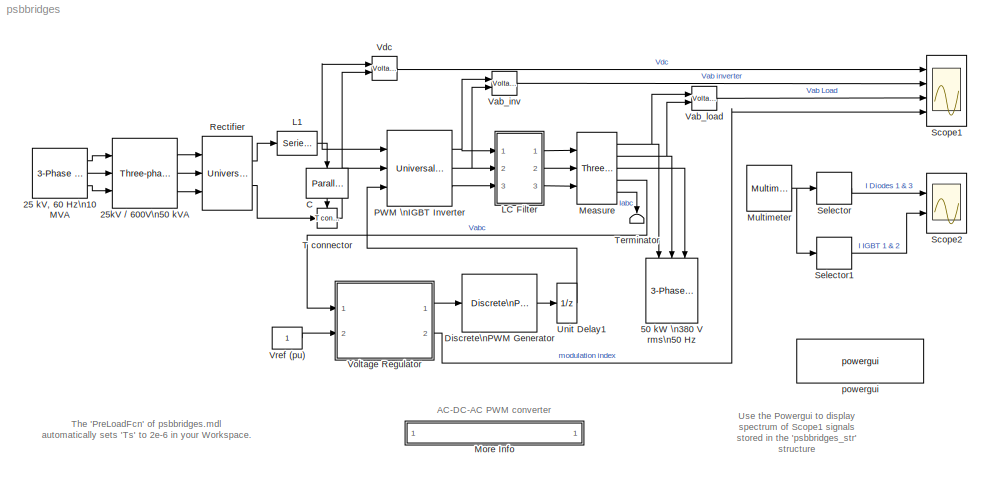
MODEL psbbridges
KIND model
CONFIG InitFcn = powericon('psbinitsys',bdroot);
CONFIG PreLoadFcn = assignin('base','Ts',[2e-6])
BLOCK [Reference] 25 kV, 60 Hz\n10 MVA  REF=powerlib2/Electrical\nSources/3-Phase Source
  F = 60
  InternalConnection = Yg
  L = 25e3^2/10e6/377
  PSBOutputType = 111
  Phi = 0
  Ports = [0, 3]
  Psc = 10e6
  R = 25e3^2/10e6/5
  RLoff = on
  SourceBlock = powerlib2/Electrical\nSources/3-Phase Source
  SourceType = 3-Phase Source
  Tag = PoWeRsYsTeMbLoCk
  V = 25e3
  Vbase = 25e3
  XRratio = 5
BLOCK [Reference] 25kV // 600V\n50 kVA  REF=powerlib2/Elements/Three-phase\nTransformer\n(Two Windings)
  PSBOutputType = 1111
  Ports = [3, 3]
  SourceBlock = powerlib2/Elements/Three-phase\nTransformer\n(Two Windings)
  SourceType = Three-Phase Transformer (Two Windings)
  Tag = PoWeRsYsTeMbLoCk
  hyst = off
  initialslopes = [+1 +1 +1]
  lm = 200
  matfile = 'hysteresis'
  mesure = None
  nominal = [ 50e3 , 60 ]
  params1 = [ 25e3 , 0.004 , 0.02 ]
  params2 = [ 600 , 0.004 , 0.02 ]
  phi0 = [ 0.8 , -0.8 , 0.7 ]
  rmag = 200
  sat = [ 0,0  ;  0.005,1.2  ;  1.0,1.4 ]
  sif = off
  type1 = Yg
  type2 = Delta (D1)
  ynsat = off
BLOCK [Reference] 50 kW \n380 V rms\n50 Hz  REF=powerlib2/Elements/3-Phase\nParallel RLC Load
  P3 = 50e3
  Ports = [3]
  QC3 = 0
  QL3 = 0
  SourceBlock = powerlib2/Elements/3-Phase\nParallel RLC Load
  SourceType = 3-phase parallel RLC load
  Vpp = 380
  fn = 50
BLOCK [Reference] C  REF=powerlib2/Elements/Parallel RLC Branch
  PSBOutputType = 1
  Ports = [1, 1]
  SourceBlock = powerlib2/Elements/Parallel RLC Branch
  SourceType = Parallel RLC Branch
  Tag = PoWeRsYsTeMbLoCk
  a = inf
  b = inf
  c = 5000e-06
  mesure = None
BLOCK [Reference] Discrete\nPWM Generator  REF=powerlib_extras/Discrete \nControl Blocks/Discrete\nPWM Generator
  Fc = 2000
  Freq = 60
  GeneratorMode = 3-arm  bridge (6 pulses)
  Internal = off
  Phase = 0
  Ports = [1, 1]
  SourceBlock = powerlib_extras/Discrete \nControl Blocks/Discrete\nPWM Generator
  SourceType = Discrete PWM Generator
  Ts = Ts
  mIndex = 0.4
BLOCK [Reference] L1  REF=powerlib2/Elements/Series RLC Branch
  PSBOutputType = 1
  Ports = [1, 1]
  SourceBlock = powerlib2/Elements/Series RLC Branch
  SourceType = Series RLC Branch
  Tag = PoWeRsYsTeMbLoCk
  a = 0
  b = 200e-6
  c = inf
  mesure = None
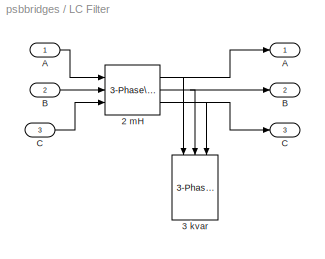
BLOCK [SubSystem] LC Filter
  MinAlgLoopOccurrences = off
  Ports = [3, 3]
  RTWSystemCode = Auto
  TreatAsAtomicUnit = off
BLOCK [Reference] LC Filter/2 mH   REF=powerlib2/Elements/3-Phase\nSeries RLC Branch 
  C = inf
  L = 2e-3
  Ports = [3, 3]
  R = 0
  SourceBlock = powerlib2/Elements/3-Phase\nSeries RLC Branch
  SourceType = 3-phase RLC series element
BLOCK [Reference] LC Filter/3 kvar  REF=powerlib2/Elements/3-Phase\nSeries RLC Load
  P3 = 0
  Ports = [3]
  QC3 = 3e3
  QL3 = 0
  SourceBlock = powerlib2/Elements/3-Phase\nSeries RLC Load
  SourceType = 3-phase series RLC load
  Vpp = 380
  fn = 50
BLOCK [Inport] LC Filter/A
  IconDisplay = Port number
  LatchInput = off
  Port = 1
BLOCK [Outport] LC Filter/A 
  BusOutputAsStruct = off
  IconDisplay = Port number
BLOCK [Inport] LC Filter/B
  IconDisplay = Port number
  LatchInput = off
  Port = 2
BLOCK [Outport] LC Filter/B 
  BusOutputAsStruct = off
  IconDisplay = Port number
  Port = 2
BLOCK [Inport] LC Filter/C
  IconDisplay = Port number
  LatchInput = off
  Port = 3
BLOCK [Outport] LC Filter/C 
  BusOutputAsStruct = off
  IconDisplay = Port number
  Port = 3
BLOCK [Reference] Measure  REF=powerlib2/Measurements/Three-Phase\nV-I Measurement
  IChoice = yes
  OutputType = Magnitude
  PSBOutputType = 11100
  PSBequivalent = 0
  Pbase = 1e3
  PhasorSimulation = off
  Ports = [3, 5]
  Ppu = off
  SourceBlock = powerlib2/Measurements/Three-Phase\nV-I Measurement
  SourceType = 3-Phase VI Measurement
  Tag = PoWeRsYsTeMmEaSuReMeNt
  VChoice = phase-to-ground
  Vbase = 380
  Vpu = on
  labelC = I1
  labelV = V1
  ualc = off
  ualv = off
BLOCK [SubSystem] More Info
  MaskDisplay = disp('? : Double click here for more info')
  MaskIconFrame = off
  MaskIconOpaque = on
  MaskIconRotate = none
  MaskIconUnits = autoscale
  MinAlgLoopOccurrences = off
  Ports = []
  RTWSystemCode = Auto
  TreatAsAtomicUnit = off
BLOCK [Reference] Multimeter  REF=powerlib2/Measurements/Multimeter
  AxesSetting = [0,0.1,-100,100]
  Display = 0
  Gain = [1 1 1 1]
  L = 12
  OutputType = Magnitude
  PSBOutputType = 1
  PSBequivalent = 0
  PhasorSimulation = off
  Ports = [0, 1]
  SavedBlockNames = -11
  SourceBlock = powerlib2/Measurements/Multimeter
  SourceType = MultimeterPSB
  Tag = PoWeRsYsTeMmEaSuReMeNt
  sel = [1 3 7 8]
  yselected = {'Isw1: Rectifier','Isw3: Rectifier','Isw1: PWM  IGBT Inverter','Isw2: PWM  IGBT Inverter'};
BLOCK [Reference] PWM \nIGBT Inverter  REF=powerlib2/Power\nElectronics/Universal Bridge
  Lon = 0
  PSBOutputType = 111
  Ports = [3, 3]
  Ron = 1e-3
  SourceBlock = powerlib2/Power\nElectronics/Universal Bridge
  SourceType = Universal Bridge
  Tag = PoWeRsYsTeMbLoCk
  VFs = [  0.0  0.0  ]
  Vf = .8
  arms = 3
  cf = inf
  confi = ABC as output terminals
  device = IGBT / Diodes
  gtoparameters = [ 1e-6 ,1e-6 ]
  igbtparameters = [ 1e-6 , 2e-6 ]
  injcc = 5000
  mesure = Device currents
BLOCK [Reference] Rectifier  REF=powerlib2/Power\nElectronics/Universal Bridge
  Lon = 0
  PSBOutputType = 111
  Ports = [3, 2]
  Ron = 1e-3
  SourceBlock = powerlib2/Power\nElectronics/Universal Bridge
  SourceType = Universal Bridge
  Tag = PoWeRsYsTeMbLoCk
  VFs = [  0.8  0.8  ]
  Vf = .8
  arms = 3
  cf = 0.1e-6
  confi = ABC as input terminals
  device = Diodes
  gtoparameters = [ 10e-6 , 20e-6 ]
  igbtparameters = [ 1e-6 , 2e-6 ]
  injcc = 100
  mesure = Device currents
BLOCK [Scope] Scope1
  DataFormat = StructureWithTime
  LimitDataPoints = off
  NumInputPorts = 4
  Ports = [4]
  SaveName = psbbridges_str
  SaveToWorkspace = on
  TimeRange = 0.1
  YMax = 1100~1500~750~1.1
  YMin = 0~-1500~-750~0.4
  ZoomMode = yonly
BLOCK [Scope] Scope2
  DataFormat = StructureWithTime
  LimitDataPoints = off
  NumInputPorts = 2
  Ports = [2]
  TimeRange = 0.09999999999999999
  YMax = 100~125
  YMin = -10~-125
BLOCK [Selector] Selector
  Elements = [1 2]
  InputPortWidth = 4
  Ports = [1, 1]
BLOCK [Selector] Selector1
  Elements = [3 4]
  InputPortWidth = 4
  Ports = [1, 1]
BLOCK [Reference] T connector  REF=powerlib2/Connectors/T connector
  PSBOutputType = 1
  Ports = [1, 1, 1]
  SourceBlock = powerlib2/Connectors/T connector
  SourceType = Bus Bar
  Tag = PoWeRsYsTeMbLoCk
BLOCK [Terminator] Terminator
BLOCK [UnitDelay] Unit Delay1
  SampleTime = Ts
BLOCK [Reference] Vab_inv  REF=powerlib2/Measurements/Voltage Measurement
  OutputType = Magnitude
  PSBOutputType = 0
  PSBequivalent = 0
  PhasorSimulation = off
  Ports = [2, 1]
  SourceBlock = powerlib2/Measurements/Voltage Measurement
  SourceType = Voltage Measurement
  Tag = PoWeRsYsTeMmEaSuReMeNt
BLOCK [Reference] Vab_load  REF=powerlib2/Measurements/Voltage Measurement
  OutputType = Magnitude
  PSBOutputType = 0
  PSBequivalent = 0
  PhasorSimulation = off
  Ports = [2, 1]
  SourceBlock = powerlib2/Measurements/Voltage Measurement
  SourceType = Voltage Measurement
  Tag = PoWeRsYsTeMmEaSuReMeNt
BLOCK [Reference] Vdc  REF=powerlib2/Measurements/Voltage Measurement
  OutputType = Magnitude
  PSBOutputType = 0
  PSBequivalent = 0
  PhasorSimulation = off
  Ports = [2, 1]
  SourceBlock = powerlib2/Measurements/Voltage Measurement
  SourceType = Voltage Measurement
  Tag = PoWeRsYsTeMmEaSuReMeNt
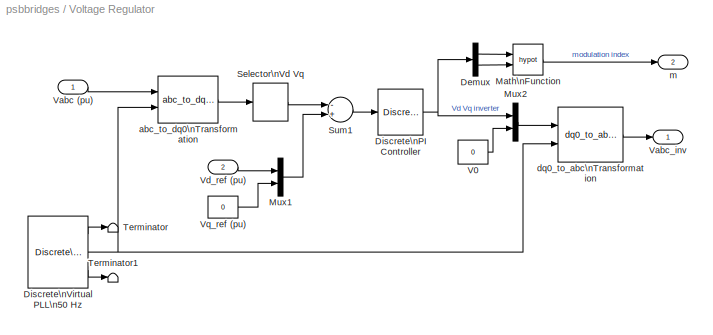
BLOCK [SubSystem] Voltage Regulator
  MaskCallbackString = ||
  MaskEnableString = on,on,on
  MaskIconFrame = on
  MaskIconOpaque = on
  MaskIconRotate = none
  MaskIconUnits = autoscale
  MaskPromptString = Proportional gain  Kp:|Integral gain Ki:|Sample time (s) :
  MaskStyleString = edit,edit,edit
  MaskTabNameString = ,,
  MaskToolTipString = on,on,on
  MaskTunableValueString = on,on,on
  MaskType = Voltage Regulator
  MaskValueString = 0.4|500|Ts
  MaskVarAliasString = ,,
  MaskVariables = Kp=@1;Ki=@2;Ts=@3;
  MaskVisibilityString = on,on,on
  MinAlgLoopOccurrences = off
  Ports = [2, 2]
  RTWSystemCode = Auto
  TreatAsAtomicUnit = off
BLOCK [Demux] Voltage Regulator/Demux
  Outputs = 2
  Ports = [1, 2]
BLOCK [Reference] Voltage Regulator/Discrete\nPI Controller  REF=powerlib_extras/Discrete \nControl Blocks/Discrete\nPI Controller
  Init = 0
  Ki = Ki
  Kp = Kp
  Par_Limits = [1 -1]
  Ports = [1, 1]
  SourceBlock = powerlib_extras/Discrete \nControl Blocks/Discrete\nPI Controller
  SourceType = Discrete PI Controller
  Ts = Ts
BLOCK [Reference] Voltage Regulator/Discrete\nVirtual PLL\n50 Hz  REF=powerlib_extras/Discrete \nControl Blocks/Discrete\nVirtual PLL
  Freq = 50
  Phase = 0
  Ports = [0, 3]
  SourceBlock = powerlib_extras/Discrete \nControl Blocks/Discrete\nVirtual PLL
  SourceType = Discrete Virtual PLL
  Ts = Ts
BLOCK [Math] Voltage Regulator/Math\nFunction
  Operator = hypot
  Ports = [2, 1]
BLOCK [Mux] Voltage Regulator/Mux1
  DisplayOption = bar
  Inputs = 2
  Ports = [2, 1]
BLOCK [Mux] Voltage Regulator/Mux2
  DisplayOption = bar
  Inputs = 2
  Ports = [2, 1]
BLOCK [Selector] Voltage Regulator/Selector\nVd Vq
  Elements = [1 2]
  InputPortWidth = 3
  Ports = [1, 1]
BLOCK [Sum] Voltage Regulator/Sum1
  Inputs = -+
  Ports = [2, 1]
BLOCK [Terminator] Voltage Regulator/Terminator
BLOCK [Terminator] Voltage Regulator/Terminator1
BLOCK [Constant] Voltage Regulator/V0
  Value = 0
BLOCK [Inport] Voltage Regulator/Vabc (pu)
  IconDisplay = Port number
  LatchInput = off
  Port = 1
BLOCK [Outport] Voltage Regulator/Vabc_inv
  BusOutputAsStruct = off
  IconDisplay = Port number
BLOCK [Inport] Voltage Regulator/Vd_ref (pu)
  IconDisplay = Port number
  LatchInput = off
  Port = 2
BLOCK [Constant] Voltage Regulator/Vq_ref (pu)
  Value = 0
BLOCK [Reference] Voltage Regulator/abc_to_dq0\nTransformation  REF=powerlib_extras/Measurements/abc_to_dq0\nTransformation
  Ports = [2, 1]
  SourceBlock = powerlib_extras/Measurements/abc_to_dq0\nTransformation
  SourceType = abc to dq0 Transformation
BLOCK [Reference] Voltage Regulator/dq0_to_abc\nTransformation  REF=powerlib_extras/Measurements/dq0_to_abc\nTransformation
  Ports = [2, 1]
  SourceBlock = powerlib_extras/Measurements/dq0_to_abc\nTransformation
  SourceType = dq0 to abc Transformation
BLOCK [Outport] Voltage Regulator/m
  BusOutputAsStruct = off
  IconDisplay = Port number
  Port = 2
BLOCK [Constant] Vref (pu) 
BLOCK [Reference] powergui  REF=powerlib2/powergui
  DisplayStyle = off
  Frange = [0:2:500]
  FreqAxis = off
  MaxFrequency = 7000
  Ports = []
  RmsSteady = 1
  SourceBlock = powerlib2/powergui
  SourceType = PSB option menu block
  StartTime = 0.1-2/50
  Ts = Ts
  Xlog = on
  Ylog = off
  ZoomFFT = on
  cycles = 2
  display = off
  echomessages = off
  frequency = 60
  frequencyindice = 1
  frequencyindicesteady = 1
  fundamental = 50
  methode = off
  save = off
  structure = psbbridges_str
  variable = ZData
ANNOTATION (root): AC-DC-AC PWM converter
ANNOTATION (root): The 'PreLoadFcn' of psbbridges.mdl\nautomatically sets 'Ts' to 2e-6 in your Workspace.
ANNOTATION (root): Use the Powergui to display \nspectrum of Scope1 signals \nstored in the 'psbbridges_str' \nstructure
ANNOTATION More Info: A 60 Hz, voltage source feeds a 50 Hz, 50 kW load through an AC-DC-AC converter. \n\nThe 600V, 60 Hz voltage obtained at secondary of the Wye/Delta transformer is first rectified by a six pulse diode bridge.\nThe filtered DC voltage is applied to an IGBT two-level inverter generating 50 Hz.\nThe IGBT inverter uses Pulse Width Modulation (PWM) at a 2 kHz carrier frequency.\nThe circuit is discretiz...<+845ch>
ANNOTATION More Info: Circuit Description
ANNOTATION More Info: Demonstration
ANNOTATION More Info: G. Sybille (Hydro-Quebec)
ANNOTATION More Info: Start the simulation. After a transient period of approximately 50 ms, the system reaches a steady state.\nObserve voltage waveforms at DC bus, inverter output and load on Scope1.\nThe harmonics generated by the inverter around around multiples of 2 kHz are filtered by the LC filter.\n\nAs expected the peak value of the load voltage is 537 V (380 Vrms). \nIn steady state the mean value of the modu...<+1118ch>
ANNOTATION More Info: This example of AC-DC-AC converter illustrates use of Universal Bridge, \n Multimeter and Powergui blocks as well as discrete control blocks of the Extras library
LINE 25 kV, 60 Hz\n10 MVA:1 -> 25kV // 600V\n50 kVA:1
LINE 25 kV, 60 Hz\n10 MVA:2 -> 25kV // 600V\n50 kVA:2
LINE 25 kV, 60 Hz\n10 MVA:3 -> 25kV // 600V\n50 kVA:3
LINE 25kV // 600V\n50 kVA:1 -> Rectifier:1
LINE 25kV // 600V\n50 kVA:2 -> Rectifier:2
LINE 25kV // 600V\n50 kVA:3 -> Rectifier:3
LINE C:1 -> T connector:enable
LINE Discrete\nPWM Generator:1 -> Unit Delay1:1
NET L1:1 -> C:1, PWM \nIGBT Inverter:1, Vdc:1
NET LC Filter/2 mH :1 -> LC Filter/3 kvar:1, LC Filter/A :1
NET LC Filter/2 mH :2 -> LC Filter/3 kvar:2, LC Filter/B :1
NET LC Filter/2 mH :3 -> LC Filter/3 kvar:3, LC Filter/C :1
LINE LC Filter/A:1 -> LC Filter/2 mH :1
LINE LC Filter/B:1 -> LC Filter/2 mH :2
LINE LC Filter/C:1 -> LC Filter/2 mH :3
LINE LC Filter:1 -> Measure:1
LINE LC Filter:2 -> Measure:2
LINE LC Filter:3 -> Measure:3
NET Measure:1 -> 50 kW \n380 V rms\n50 Hz:1, Vab_load:1
NET Measure:2 -> 50 kW \n380 V rms\n50 Hz:2, Vab_load:2
LINE Measure:3 -> 50 kW \n380 V rms\n50 Hz:3
LINE Measure:4 -> Voltage Regulator:1
LINE Measure:5 -> Terminator:1
NET Multimeter:1 -> Selector1:1, Selector:1
NET PWM \nIGBT Inverter:1 -> LC Filter:1, Vab_inv:1
NET PWM \nIGBT Inverter:2 -> LC Filter:2, Vab_inv:2
LINE PWM \nIGBT Inverter:3 -> LC Filter:3
LINE Rectifier:1 -> L1:1
LINE Rectifier:2 -> T connector:1
LINE Selector1:1 -> Scope2:2
LINE Selector:1 -> Scope2:1
NET T connector:1 -> PWM \nIGBT Inverter:2, Vdc:2
LINE Unit Delay1:1 -> PWM \nIGBT Inverter:3
LINE Vab_inv:1 -> Scope1:2
LINE Vab_load:1 -> Scope1:3
LINE Vdc:1 -> Scope1:1
LINE Voltage Regulator/Demux:1 -> Voltage Regulator/Math\nFunction:1
LINE Voltage Regulator/Demux:2 -> Voltage Regulator/Math\nFunction:2
NET Voltage Regulator/Discrete\nPI Controller:1 -> Voltage Regulator/Demux:1, Voltage Regulator/Mux2:1
LINE Voltage Regulator/Discrete\nVirtual PLL\n50 Hz:1 -> Voltage Regulator/Terminator:1
NET Voltage Regulator/Discrete\nVirtual PLL\n50 Hz:2 -> Voltage Regulator/abc_to_dq0\nTransformation:2, Voltage Regulator/dq0_to_abc\nTransformation:2
LINE Voltage Regulator/Discrete\nVirtual PLL\n50 Hz:3 -> Voltage Regulator/Terminator1:1
LINE Voltage Regulator/Math\nFunction:1 -> Voltage Regulator/m:1
LINE Voltage Regulator/Mux1:1 -> Voltage Regulator/Sum1:2
LINE Voltage Regulator/Mux2:1 -> Voltage Regulator/dq0_to_abc\nTransformation:1
LINE Voltage Regulator/Selector\nVd Vq:1 -> Voltage Regulator/Sum1:1
LINE Voltage Regulator/Sum1:1 -> Voltage Regulator/Discrete\nPI Controller:1
LINE Voltage Regulator/V0:1 -> Voltage Regulator/Mux2:2
LINE Voltage Regulator/Vabc (pu):1 -> Voltage Regulator/abc_to_dq0\nTransformation:1
LINE Voltage Regulator/Vd_ref (pu):1 -> Voltage Regulator/Mux1:1
LINE Voltage Regulator/Vq_ref (pu):1 -> Voltage Regulator/Mux1:2
LINE Voltage Regulator/abc_to_dq0\nTransformation:1 -> Voltage Regulator/Selector\nVd Vq:1
LINE Voltage Regulator/dq0_to_abc\nTransformation:1 -> Voltage Regulator/Vabc_inv:1
LINE Voltage Regulator:1 -> Discrete\nPWM Generator:1
LINE Voltage Regulator:2 -> Scope1:4
LINE Vref (pu) :1 -> Voltage Regulator:2
note: NET lines group one-source signal fan-out (src -> all destinations, sorted); 1:1 wires keep LINE
